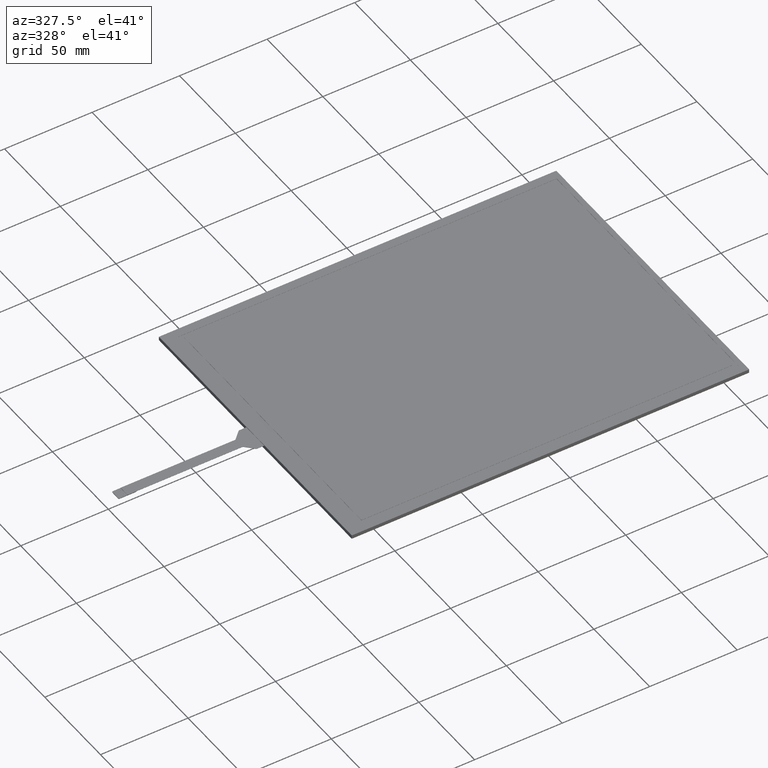
[diagram: clean part render]
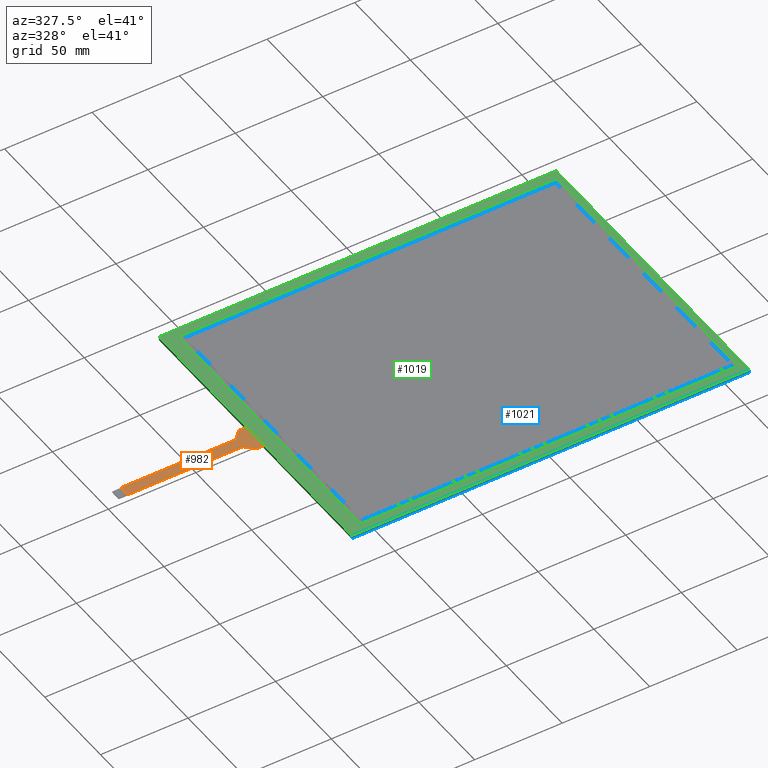
[diagram: same view with three faces highlighted in distinct colors, each labeled with its STEP entity id]
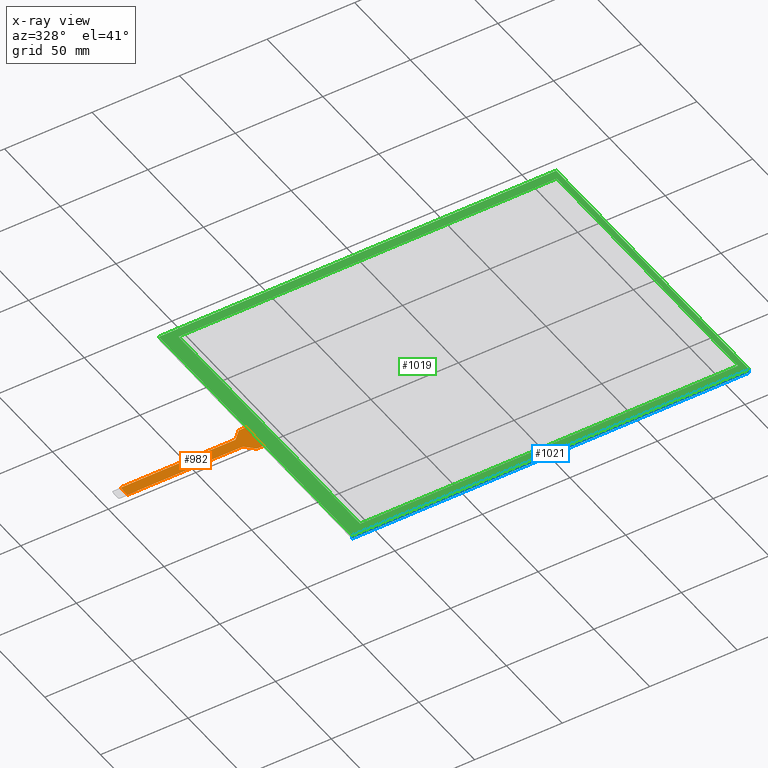
[diagram: x-ray of the same camera — body ghosted, the three highlighted faces saturated]
A machine part, auxiliary view with three faces highlighted in distinct colors.
The next image is the same camera in x-ray (body ghosted, the three faces saturated) — at least one of them is partly hidden behind the body in this view.
Their STEP definitions:

[orange] entity #982 — the highlighted planar face has unit normal (0, 0, 1).
#53=PLANE('',#1059);
#101=FACE_OUTER_BOUND('',#152,.T.);
#152=EDGE_LOOP('',(#744,#745,#746,#747,#748,#749,#750,#751,#752,#753,#754,
#755));
#230=LINE('',#1437,#356);
#234=LINE('',#1450,#360);
#235=LINE('',#1454,#361);
#236=LINE('',#1455,#362);
#237=LINE('',#1459,#363);
#238=LINE('',#1463,#364);
#239=LINE('',#1465,#365);
#240=LINE('',#1466,#366);
#356=VECTOR('',#1162,10.);
#360=VECTOR('',#1174,10.);
#361=VECTOR('',#1177,10.);
#362=VECTOR('',#1178,10.);
#363=VECTOR('',#1181,10.);
#364=VECTOR('',#1184,10.);
#365=VECTOR('',#1185,10.);
#366=VECTOR('',#1186,10.);
#456=CIRCLE('',#1058,1.);
#457=CIRCLE('',#1060,1.);
#458=CIRCLE('',#1061,1.);
#459=CIRCLE('',#1062,1.);
#493=VERTEX_POINT('',#1434);
#494=VERTEX_POINT('',#1436);
#497=VERTEX_POINT('',#1443);
#498=VERTEX_POINT('',#1445);
#499=VERTEX_POINT('',#1449);
#500=VERTEX_POINT('',#1451);
#501=VERTEX_POINT('',#1453);
#502=VERTEX_POINT('',#1456);
#503=VERTEX_POINT('',#1458);
#504=VERTEX_POINT('',#1460);
#505=VERTEX_POINT('',#1462);
#506=VERTEX_POINT('',#1464);
#590=EDGE_CURVE('',#494,#493,#230,.T.);
#594=EDGE_CURVE('',#497,#498,#456,.T.);
#596=EDGE_CURVE('',#497,#499,#234,.T.);
#597=EDGE_CURVE('',#500,#499,#457,.T.);
#598=EDGE_CURVE('',#500,#501,#235,.T.);
#599=EDGE_CURVE('',#501,#494,#236,.T.);
#600=EDGE_CURVE('',#502,#493,#458,.T.);
#601=EDGE_CURVE('',#502,#503,#237,.T.);
#602=EDGE_CURVE('',#504,#503,#459,.T.);
#603=EDGE_CURVE('',#504,#505,#238,.T.);
#604=EDGE_CURVE('',#506,#505,#239,.T.);
#605=EDGE_CURVE('',#506,#498,#240,.T.);
#744=ORIENTED_EDGE('',*,*,#594,.F.);
#745=ORIENTED_EDGE('',*,*,#596,.T.);
#746=ORIENTED_EDGE('',*,*,#597,.F.);
#747=ORIENTED_EDGE('',*,*,#598,.T.);
#748=ORIENTED_EDGE('',*,*,#599,.T.);
#749=ORIENTED_EDGE('',*,*,#590,.T.);
#750=ORIENTED_EDGE('',*,*,#600,.F.);
#751=ORIENTED_EDGE('',*,*,#601,.T.);
#752=ORIENTED_EDGE('',*,*,#602,.F.);
#753=ORIENTED_EDGE('',*,*,#603,.T.);
#754=ORIENTED_EDGE('',*,*,#604,.F.);
#755=ORIENTED_EDGE('',*,*,#605,.T.);
#982=ADVANCED_FACE('',(#101),#53,.T.);
#1058=AXIS2_PLACEMENT_3D('',#1446,#1169,#1170);
#1059=AXIS2_PLACEMENT_3D('',#1448,#1172,#1173);
#1060=AXIS2_PLACEMENT_3D('',#1452,#1175,#1176);
#1061=AXIS2_PLACEMENT_3D('',#1457,#1179,#1180);
#1062=AXIS2_PLACEMENT_3D('',#1461,#1182,#1183);
#1162=DIRECTION('',(1.,0.,0.));
#1169=DIRECTION('center_axis',(0.,0.,-1.));
#1170=DIRECTION('ref_axis',(-0.376366215351623,0.926470977387795,0.));
#1172=DIRECTION('center_axis',(0.,0.,1.));
#1173=DIRECTION('ref_axis',(1.,0.,0.));
#1174=DIRECTION('',(-0.716696943883791,-0.697384750785128,0.));
#1175=DIRECTION('center_axis',(0.,0.,1.));
#1176=DIRECTION('ref_axis',(0.376366215351623,-0.926470977387795,0.));
#1177=DIRECTION('',(-1.,-3.77412926218183E-16,0.));
#1178=DIRECTION('',(0.,-1.,0.));
#1179=DIRECTION('center_axis',(0.,0.,1.));
#1180=DIRECTION('ref_axis',(0.388982807598792,0.921245013768086,0.));
#1181=DIRECTION('',(0.697384750785127,-0.716696943883791,0.));
#1182=DIRECTION('center_axis',(0.,0.,-1.));
#1183=DIRECTION('ref_axis',(-0.388982807598791,-0.921245013768086,0.));
#1184=DIRECTION('',(1.,2.0231854662873E-15,0.));
#1185=DIRECTION('',(2.05359172185E-16,-1.,0.));
#1186=DIRECTION('',(-1.,2.0231854662873E-15,0.));
#1434=CARTESIAN_POINT('',(-125.555873722342,-3.12500000000001,-0.2));
#1436=CARTESIAN_POINT('',(-191.,-3.12500000000001,-0.2));
#1437=CARTESIAN_POINT('',(-196.,-3.12500000000001,-0.2));
#1443=CARTESIAN_POINT('',(-120.681148371516,7.7166969438838,-0.2));
#1445=CARTESIAN_POINT('',(-119.983763620731,8.00000000000001,-0.2));
#1446=CARTESIAN_POINT('Origin',(-119.983763620731,7.00000000000001,-0.2));
#1448=CARTESIAN_POINT('Origin',(-156.,0.,-0.2));
#1449=CARTESIAN_POINT('',(-125.108851628484,3.40830305611623,-0.2));
#1450=CARTESIAN_POINT('',(-120.39,8.00000000000001,-0.2));
#1451=CARTESIAN_POINT('',(-125.806236379269,3.12500000000002,-0.2));
#1452=CARTESIAN_POINT('Origin',(-125.806236379269,4.12500000000002,-0.2));
#1453=CARTESIAN_POINT('',(-191.,3.12499999999998,-0.2));
#1454=CARTESIAN_POINT('',(-125.4,3.12500000000002,-0.2));
#1455=CARTESIAN_POINT('',(-191.,1.56249999999999,-0.2));
#1456=CARTESIAN_POINT('',(-124.839176778459,-3.42761524921489,-0.2));
#1457=CARTESIAN_POINT('Origin',(-125.555873722342,-4.12500000000001,-0.2));
#1458=CARTESIAN_POINT('',(-120.684460946092,-7.69738475078513,-0.2));
#1459=CARTESIAN_POINT('',(-125.133637724551,-3.12500000000001,-0.2));
#1460=CARTESIAN_POINT('',(-119.967764002209,-8.00000000000001,-0.2));
#1461=CARTESIAN_POINT('Origin',(-119.967764002209,-7.00000000000001,-0.2));
#1462=CARTESIAN_POINT('',(-116.,-8.,-0.2));
#1463=CARTESIAN_POINT('',(-120.39,-8.00000000000001,-0.2));
#1464=CARTESIAN_POINT('',(-116.,8.,-0.2));
#1465=CARTESIAN_POINT('',(-116.,-43.25,-0.2));
#1466=CARTESIAN_POINT('',(-116.,8.,-0.2));

[blue] entity #1021 — the highlighted planar face has unit normal (0, -1, 0).
#89=PLANE('',#1104);
#140=FACE_OUTER_BOUND('',#194,.T.);
#194=EDGE_LOOP('',(#949,#950,#951,#952));
#315=LINE('',#1625,#441);
#319=LINE('',#1632,#445);
#320=LINE('',#1635,#446);
#321=LINE('',#1636,#447);
#441=VECTOR('',#1341,10.);
#445=VECTOR('',#1347,10.);
#446=VECTOR('',#1350,10.);
#447=VECTOR('',#1351,10.);
#549=VERTEX_POINT('',#1622);
#550=VERTEX_POINT('',#1624);
#552=VERTEX_POINT('',#1630);
#553=VERTEX_POINT('',#1634);
#683=EDGE_CURVE('',#549,#550,#315,.T.);
#687=EDGE_CURVE('',#549,#552,#319,.T.);
#688=EDGE_CURVE('',#553,#552,#320,.T.);
#689=EDGE_CURVE('',#550,#553,#321,.T.);
#949=ORIENTED_EDGE('',*,*,#683,.F.);
#950=ORIENTED_EDGE('',*,*,#687,.T.);
#951=ORIENTED_EDGE('',*,*,#688,.F.);
#952=ORIENTED_EDGE('',*,*,#689,.F.);
#1021=ADVANCED_FACE('',(#140),#89,.T.);
#1104=AXIS2_PLACEMENT_3D('',#1633,#1348,#1349);
#1341=DIRECTION('',(1.,2.34760815779769E-16,0.));
#1347=DIRECTION('',(0.,0.,-1.));
#1348=DIRECTION('center_axis',(2.34760815779769E-16,-1.,0.));
#1349=DIRECTION('ref_axis',(-1.,-2.34760815779769E-16,0.));
#1350=DIRECTION('',(-1.,-2.34760815779769E-16,0.));
#1351=DIRECTION('',(0.,0.,-1.));
#1622=CARTESIAN_POINT('',(-116.,-86.5,0.));
#1624=CARTESIAN_POINT('',(111.,-86.4999999999999,0.));
#1625=CARTESIAN_POINT('',(-116.,-86.5,0.));
#1630=CARTESIAN_POINT('',(-116.,-86.5,-2.1));
#1632=CARTESIAN_POINT('',(-116.,-86.5,0.));
#1633=CARTESIAN_POINT('Origin',(111.,-86.4999999999999,0.));
#1634=CARTESIAN_POINT('',(111.,-86.4999999999999,-2.1));
#1635=CARTESIAN_POINT('',(-116.,-86.5,-2.1));
#1636=CARTESIAN_POINT('',(111.,-86.4999999999999,0.));

[green] entity #1019 — the highlighted planar face has unit normal (0, 0, 1).
#47=FACE_BOUND('',#191,.T.);
#87=PLANE('',#1102);
#138=FACE_OUTER_BOUND('',#190,.T.);
#190=EDGE_LOOP('',(#933,#934,#935,#936));
#191=EDGE_LOOP('',(#937,#938,#939,#940));
#301=LINE('',#1596,#427);
#305=LINE('',#1604,#431);
#308=LINE('',#1610,#434);
#311=LINE('',#1615,#437);
#313=LINE('',#1621,#439);
#314=LINE('',#1623,#440);
#315=LINE('',#1625,#441);
#316=LINE('',#1626,#442);
#427=VECTOR('',#1317,10.);
#431=VECTOR('',#1323,10.);
#434=VECTOR('',#1328,10.);
#437=VECTOR('',#1333,10.);
#439=VECTOR('',#1339,10.);
#440=VECTOR('',#1340,10.);
#441=VECTOR('',#1341,10.);
#442=VECTOR('',#1342,10.);
#539=VERTEX_POINT('',#1594);
#540=VERTEX_POINT('',#1595);
#543=VERTEX_POINT('',#1603);
#545=VERTEX_POINT('',#1609);
#547=VERTEX_POINT('',#1619);
#548=VERTEX_POINT('',#1620);
#549=VERTEX_POINT('',#1622);
#550=VERTEX_POINT('',#1624);
#669=EDGE_CURVE('',#539,#540,#301,.T.);
#673=EDGE_CURVE('',#543,#539,#305,.T.);
#676=EDGE_CURVE('',#545,#543,#308,.T.);
#679=EDGE_CURVE('',#540,#545,#311,.T.);
#681=EDGE_CURVE('',#547,#548,#313,.T.);
#682=EDGE_CURVE('',#548,#549,#314,.T.);
#683=EDGE_CURVE('',#549,#550,#315,.T.);
#684=EDGE_CURVE('',#550,#547,#316,.T.);
#933=ORIENTED_EDGE('',*,*,#681,.T.);
#934=ORIENTED_EDGE('',*,*,#682,.T.);
#935=ORIENTED_EDGE('',*,*,#683,.T.);
#936=ORIENTED_EDGE('',*,*,#684,.T.);
#937=ORIENTED_EDGE('',*,*,#669,.T.);
#938=ORIENTED_EDGE('',*,*,#679,.T.);
#939=ORIENTED_EDGE('',*,*,#676,.T.);
#940=ORIENTED_EDGE('',*,*,#673,.T.);
#1019=ADVANCED_FACE('',(#138,#47),#87,.T.);
#1102=AXIS2_PLACEMENT_3D('',#1618,#1337,#1338);
#1317=DIRECTION('',(-1.08978947202469E-16,1.,0.));
#1323=DIRECTION('',(-1.,-8.22387425648264E-17,0.));
#1328=DIRECTION('',(0.,-1.,0.));
#1333=DIRECTION('',(1.,0.,0.));
#1337=DIRECTION('center_axis',(0.,0.,1.));
#1338=DIRECTION('ref_axis',(1.,0.,0.));
#1339=DIRECTION('',(-1.,0.,0.));
#1340=DIRECTION('',(2.05359172185E-16,-1.,0.));
#1341=DIRECTION('',(1.,2.34760815779769E-16,0.));
#1342=DIRECTION('',(0.,1.,0.));
#1594=CARTESIAN_POINT('',(-108.,-81.5,0.));
#1595=CARTESIAN_POINT('',(-108.,81.5,0.));
#1596=CARTESIAN_POINT('',(-108.,-40.75,0.));
#1603=CARTESIAN_POINT('',(108.,-81.5,0.));
#1604=CARTESIAN_POINT('',(52.75,-81.5,0.));
#1609=CARTESIAN_POINT('',(108.,81.5,0.));
#1610=CARTESIAN_POINT('',(108.,40.75,0.));
#1615=CARTESIAN_POINT('',(-55.25,81.5,0.));
#1618=CARTESIAN_POINT('Origin',(-2.50000000000002,2.66453525910038E-14,
0.));
#1619=CARTESIAN_POINT('',(111.,86.5000000000001,0.));
#1620=CARTESIAN_POINT('',(-116.,86.5000000000001,0.));
#1621=CARTESIAN_POINT('',(111.,86.5000000000001,0.));
#1622=CARTESIAN_POINT('',(-116.,-86.5,0.));
#1623=CARTESIAN_POINT('',(-116.,86.5,0.));
#1624=CARTESIAN_POINT('',(111.,-86.4999999999999,0.));
#1625=CARTESIAN_POINT('',(-116.,-86.5,0.));
#1626=CARTESIAN_POINT('',(111.,-86.4999999999999,0.));